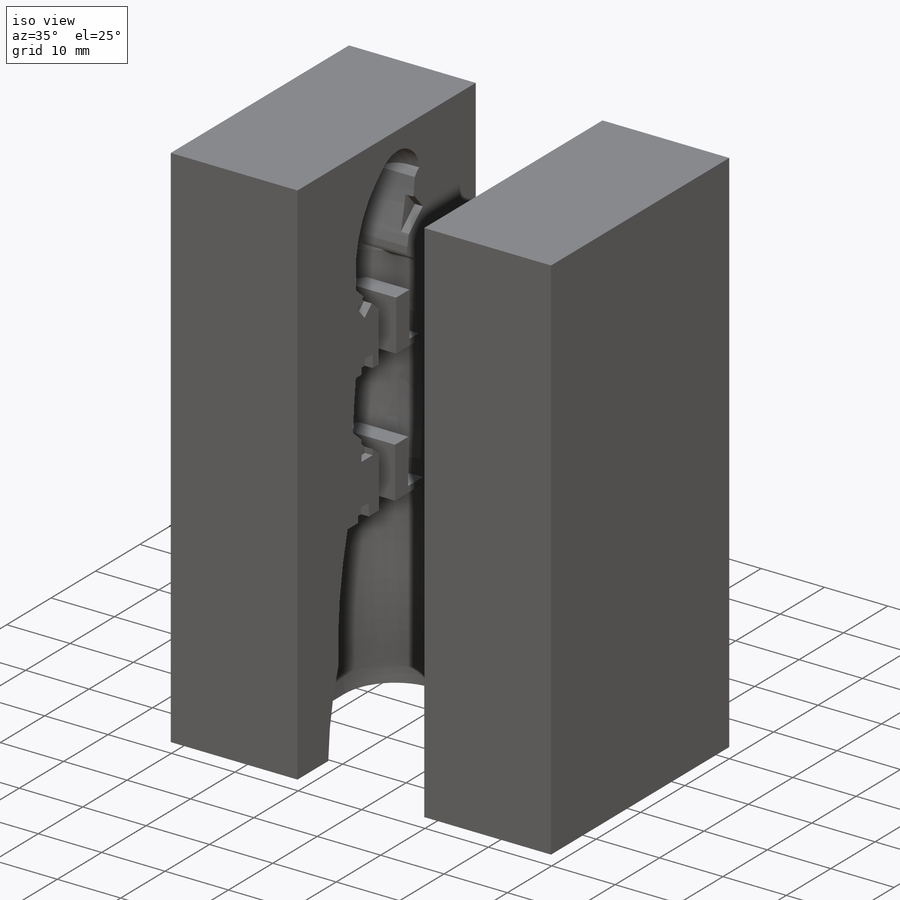
[diagram: iso view]
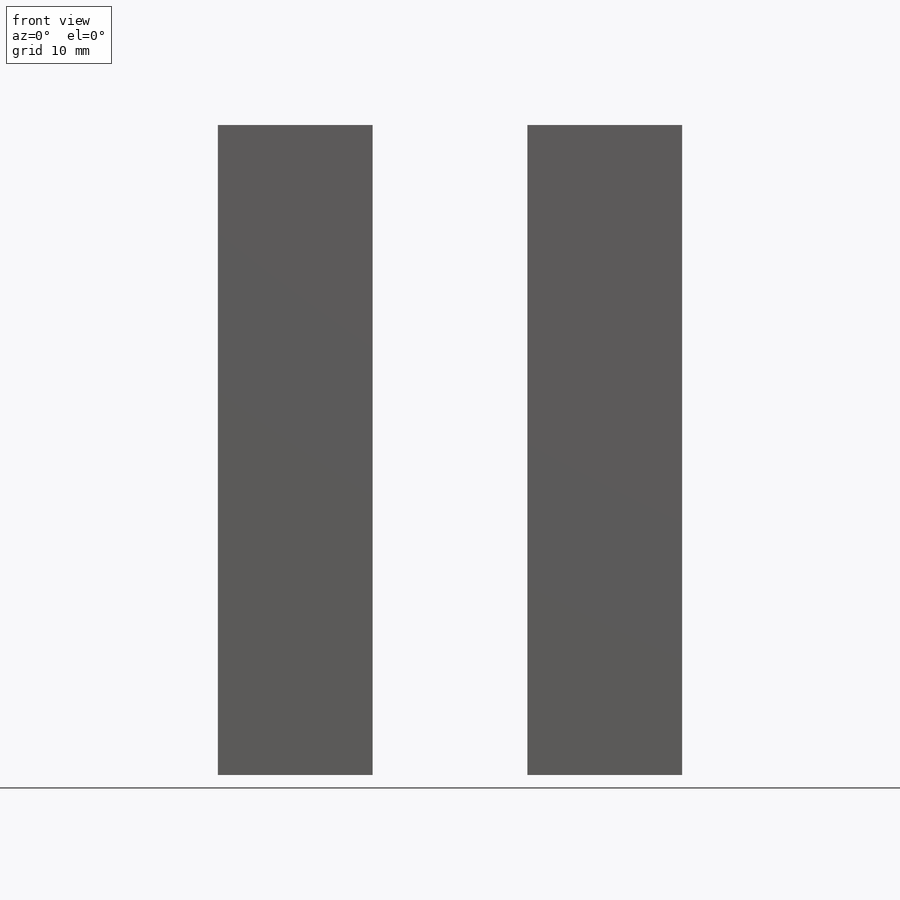
[diagram: front view]
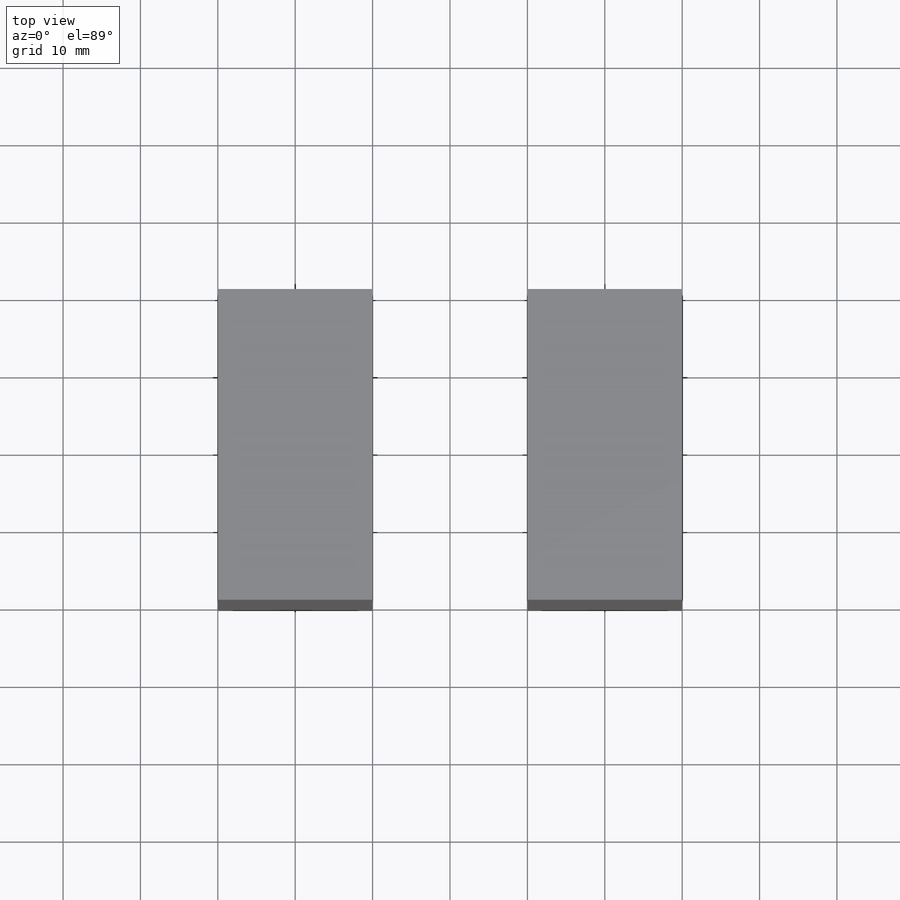
[diagram: top view]
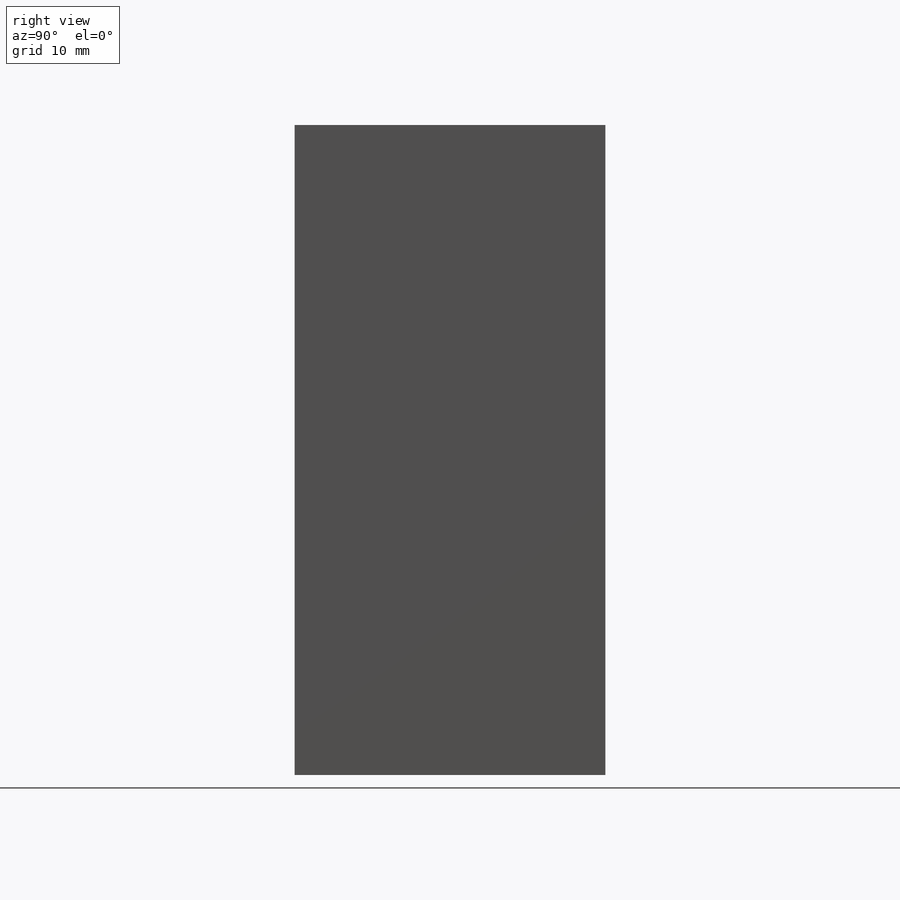
[diagram: right view]
SOLIDWORKS PART (.sldprt)
format: sldprt  version: not decoded by parser v0  size: 733,184 bytes
history: native  units: mm
features: sketch x3, cut_extrude x2, material x1, extrude x1, plane x1, mirror x1 (+13 scaffold rows collapsed)
feature tree (22):
  scaffold x13  (default folders/planes/origin — collapsed)
  material  "Material <not specified>"
  sketch  "Sketch1"  dims[D1=26.0mm]
  cut_extrude  "Cut-Extrude1"  Depth=20mm
  sketch  "Sketch2"  dims[D1=4.0mm]
  extrude  "Boss-Extrude1"  Depth=20mm
  sketch  "Sketch3"  dims[D1=1.25mm]
  cut_extrude  "Cut-Extrude2"  Depth=1.25mm
  plane  "Plane2"  Offset=10mm
  mirror  "Mirror2"
decode coverage: 6 of 7 modeling features carry decoded parameters
note: suppression state not decoded; provenance and decode notes live in map.json
